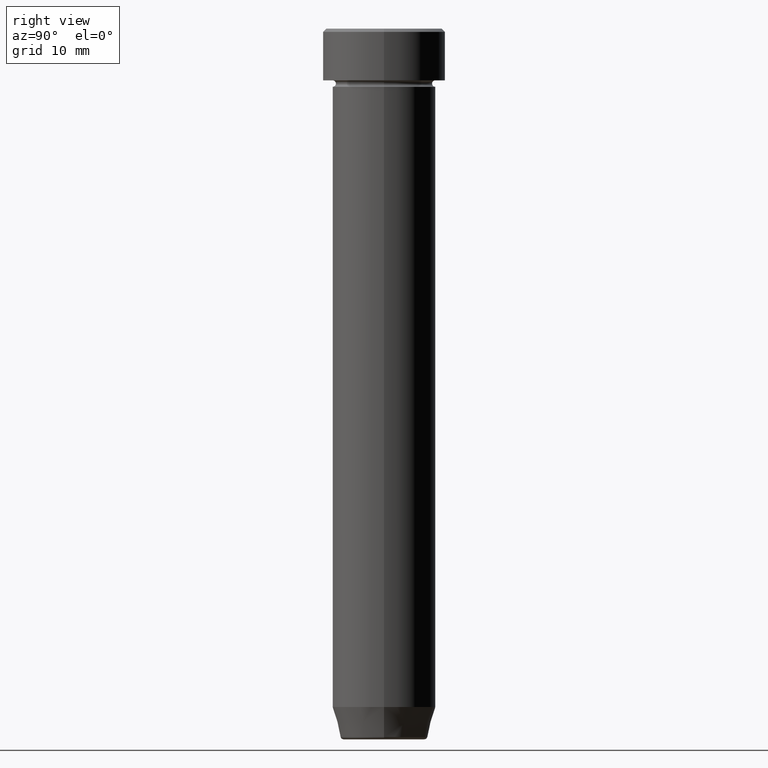
[diagram: clean part render]
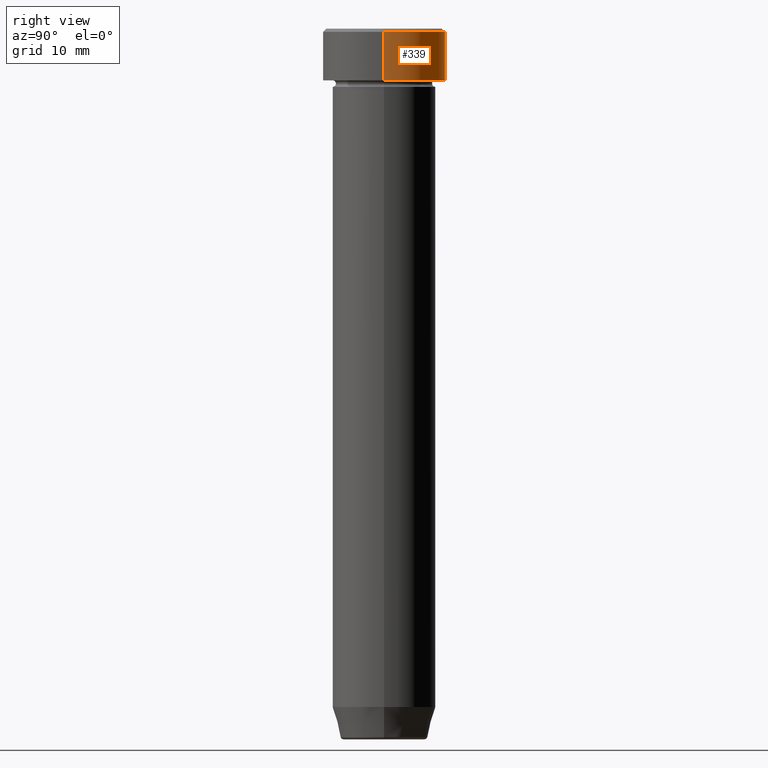
[diagram: same view with one face highlighted and labeled with its STEP entity id]
A machine part, right view. The second image highlights one B-rep face of the part: STEP entity #339.
In plain terms, the highlighted cylindrical surface (partial cylindrical patch) has radius 9.5 mm, axis along (-0, -0, 1).
Its self-contained STEP definition (entity closure, byte-faithful):
#17 = DIRECTION ( 'NONE',  ( 1.000000000000000000, 0.000000000000000000, 0.000000000000000000 ) ) ;
#27 = CARTESIAN_POINT ( 'NONE',  ( 9.500000000000000000, 0.000000000000000000, -0.4999999999999968914 ) ) ;
#30 = VERTEX_POINT ( 'NONE', #27 ) ;
#42 = DIRECTION ( 'NONE',  ( 1.000000000000000000, 0.000000000000000000, 0.000000000000000000 ) ) ;
#43 = DIRECTION ( 'NONE',  ( -0.000000000000000000, -0.000000000000000000, 1.000000000000000000 ) ) ;
#65 = CARTESIAN_POINT ( 'NONE',  ( 0.000000000000000000, 0.000000000000000000, -0.4999999999999968914 ) ) ;
#66 = AXIS2_PLACEMENT_3D ( 'NONE', #65, #392, #17 ) ;
#67 = ORIENTED_EDGE ( 'NONE', *, *, #231, .T. ) ;
#88 = DIRECTION ( 'NONE',  ( -0.000000000000000000, -0.000000000000000000, 1.000000000000000000 ) ) ;
#90 = CARTESIAN_POINT ( 'NONE',  ( 9.500000000000000000, 0.000000000000000000, -8.000000000000000000 ) ) ;
#96 = CIRCLE ( 'NONE', #66, 9.500000000000000000 ) ;
#123 = AXIS2_PLACEMENT_3D ( 'NONE', #271, #235, #42 ) ;
#161 = CARTESIAN_POINT ( 'NONE',  ( -9.500000000000000000, 1.163414459189985485E-15, -8.000000000000000000 ) ) ;
#182 = CARTESIAN_POINT ( 'NONE',  ( -9.500000000000000000, 1.163414459189985485E-15, 0.000000000000000000 ) ) ;
#183 = CARTESIAN_POINT ( 'NONE',  ( -9.500000000000000000, 1.163414459189985485E-15, -0.4999999999999968914 ) ) ;
#187 = EDGE_CURVE ( 'NONE', #427, #387, #547, .T. ) ;
#190 = CYLINDRICAL_SURFACE ( 'NONE', #430, 9.500000000000000000 ) ;
#200 = CIRCLE ( 'NONE', #123, 9.500000000000000000 ) ;
#203 = EDGE_CURVE ( 'NONE', #207, #30, #500, .T. ) ;
#207 = VERTEX_POINT ( 'NONE', #90 ) ;
#221 = VECTOR ( 'NONE', #356, 1000.000000000000000 ) ;
#231 = EDGE_CURVE ( 'NONE', #207, #427, #200, .T. ) ;
#235 = DIRECTION ( 'NONE',  ( -0.000000000000000000, -0.000000000000000000, 1.000000000000000000 ) ) ;
#254 = EDGE_LOOP ( 'NONE', ( #67, #434, #563, #384 ) ) ;
#271 = CARTESIAN_POINT ( 'NONE',  ( 0.000000000000000000, 0.000000000000000000, -8.000000000000000000 ) ) ;
#319 = FACE_OUTER_BOUND ( 'NONE', #254, .T. ) ;
#325 = CARTESIAN_POINT ( 'NONE',  ( 0.000000000000000000, 0.000000000000000000, 0.000000000000000000 ) ) ;
#339 = ADVANCED_FACE ( 'NONE', ( #319 ), #190, .T. ) ;
#356 = DIRECTION ( 'NONE',  ( -0.000000000000000000, -0.000000000000000000, 1.000000000000000000 ) ) ;
#361 = CARTESIAN_POINT ( 'NONE',  ( 9.500000000000000000, 0.000000000000000000, 0.000000000000000000 ) ) ;
#371 = DIRECTION ( 'NONE',  ( 1.000000000000000000, 0.000000000000000000, 0.000000000000000000 ) ) ;
#384 = ORIENTED_EDGE ( 'NONE', *, *, #203, .F. ) ;
#387 = VERTEX_POINT ( 'NONE', #183 ) ;
#392 = DIRECTION ( 'NONE',  ( 0.000000000000000000, 0.000000000000000000, -1.000000000000000000 ) ) ;
#427 = VERTEX_POINT ( 'NONE', #161 ) ;
#430 = AXIS2_PLACEMENT_3D ( 'NONE', #325, #43, #371 ) ;
#434 = ORIENTED_EDGE ( 'NONE', *, *, #187, .T. ) ;
#500 = LINE ( 'NONE', #361, #580 ) ;
#502 = EDGE_CURVE ( 'NONE', #387, #30, #96, .T. ) ;
#547 = LINE ( 'NONE', #182, #221 ) ;
#563 = ORIENTED_EDGE ( 'NONE', *, *, #502, .T. ) ;
#580 = VECTOR ( 'NONE', #88, 1000.000000000000000 ) ;